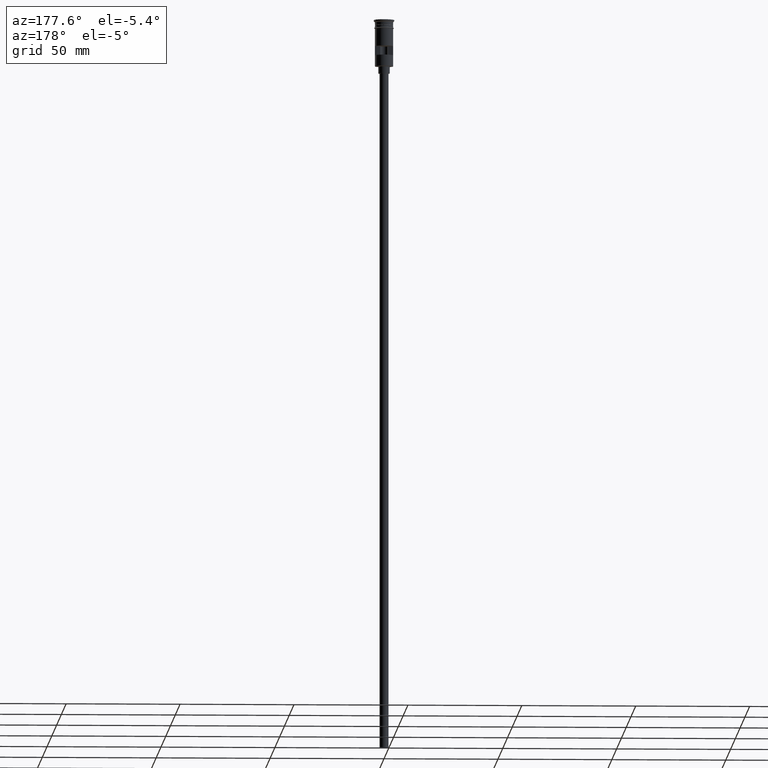
[diagram: clean part render]
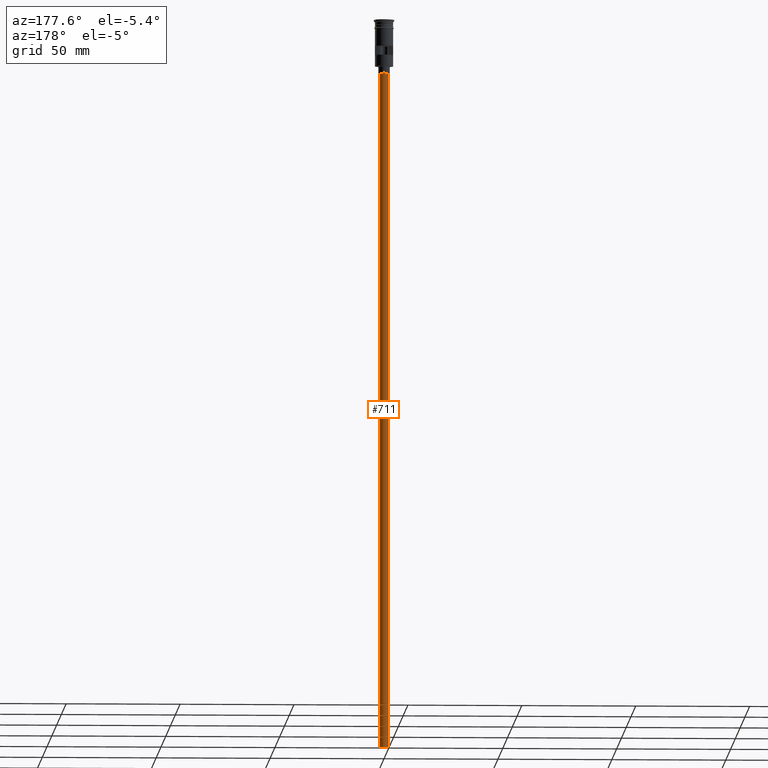
[diagram: same view with one face highlighted and labeled with its STEP entity id]
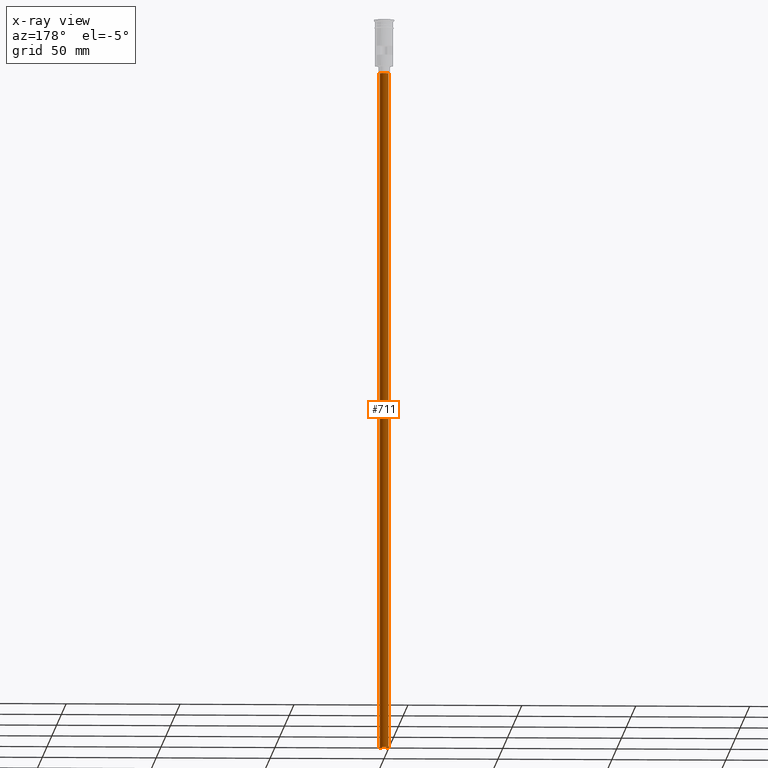
[diagram: x-ray of the same camera — body ghosted, the highlighted face saturated]
A machine part, auxiliary view. The second image highlights one B-rep face of the part: STEP entity #711.
The next image is the same camera in x-ray: the body ghosted, the highlighted face saturated — about 0% of this face is hidden behind the body in this view.
In plain terms, the highlighted cylindrical surface (edge-blend (fillet) strip) has radius 2 mm, axis along (-0, -0, 1).
Its self-contained STEP definition (entity closure, byte-faithful):
#54 = DIRECTION ( 'NONE',  ( 0.000000000000000000, 0.000000000000000000, -1.000000000000000000 ) ) ;
#70 = FACE_OUTER_BOUND ( 'NONE', #1153, .T. ) ;
#85 = AXIS2_PLACEMENT_3D ( 'NONE', #1045, #676, #194 ) ;
#167 = CARTESIAN_POINT ( 'NONE',  ( 0.000000000000000000, 0.000000000000000000, -320.5000000000000000 ) ) ;
#186 = DIRECTION ( 'NONE',  ( -1.000000000000000000, 0.000000000000000000, 0.000000000000000000 ) ) ;
#188 = VECTOR ( 'NONE', #538, 1000.000000000000000 ) ;
#191 = EDGE_CURVE ( 'NONE', #1218, #833, #1209, .T. ) ;
#194 = DIRECTION ( 'NONE',  ( -1.000000000000000000, 0.000000000000000000, 0.000000000000000000 ) ) ;
#295 = EDGE_CURVE ( 'NONE', #663, #1218, #1021, .T. ) ;
#300 = DIRECTION ( 'NONE',  ( -0.000000000000000000, -0.000000000000000000, 1.000000000000000000 ) ) ;
#304 = EDGE_CURVE ( 'NONE', #474, #833, #1428, .T. ) ;
#441 = ORIENTED_EDGE ( 'NONE', *, *, #191, .F. ) ;
#442 = DIRECTION ( 'NONE',  ( 1.000000000000000000, 0.000000000000000000, 0.000000000000000000 ) ) ;
#474 = VERTEX_POINT ( 'NONE', #731 ) ;
#520 = EDGE_CURVE ( 'NONE', #663, #474, #1366, .T. ) ;
#538 = DIRECTION ( 'NONE',  ( -0.000000000000000000, -0.000000000000000000, 1.000000000000000000 ) ) ;
#663 = VERTEX_POINT ( 'NONE', #1290 ) ;
#676 = DIRECTION ( 'NONE',  ( 0.000000000000000000, 0.000000000000000000, -1.000000000000000000 ) ) ;
#711 = ADVANCED_FACE ( 'NONE', ( #70 ), #1418, .T. ) ;
#731 = CARTESIAN_POINT ( 'NONE',  ( -2.000000000000000000, 2.449293598294706414E-16, -23.49999999999999645 ) ) ;
#734 = CARTESIAN_POINT ( 'NONE',  ( 2.000000000000000000, 0.000000000000000000, -320.5000000000000000 ) ) ;
#746 = ORIENTED_EDGE ( 'NONE', *, *, #295, .F. ) ;
#833 = VERTEX_POINT ( 'NONE', #863 ) ;
#838 = DIRECTION ( 'NONE',  ( -0.000000000000000000, -0.000000000000000000, 1.000000000000000000 ) ) ;
#863 = CARTESIAN_POINT ( 'NONE',  ( 2.000000000000000000, 0.000000000000000000, -23.49999999999999645 ) ) ;
#867 = VECTOR ( 'NONE', #838, 1000.000000000000000 ) ;
#890 = CARTESIAN_POINT ( 'NONE',  ( -2.000000000000000000, 2.449293598294706414E-16, -320.5000000000000000 ) ) ;
#996 = AXIS2_PLACEMENT_3D ( 'NONE', #1300, #54, #186 ) ;
#1017 = ORIENTED_EDGE ( 'NONE', *, *, #520, .T. ) ;
#1021 = CIRCLE ( 'NONE', #85, 2.000000000000000000 ) ;
#1045 = CARTESIAN_POINT ( 'NONE',  ( 0.000000000000000000, 0.000000000000000000, -320.5000000000000000 ) ) ;
#1153 = EDGE_LOOP ( 'NONE', ( #746, #1017, #1516, #441 ) ) ;
#1209 = LINE ( 'NONE', #734, #867 ) ;
#1218 = VERTEX_POINT ( 'NONE', #1350 ) ;
#1290 = CARTESIAN_POINT ( 'NONE',  ( -2.000000000000000000, 2.449293598294706414E-16, -320.5000000000000000 ) ) ;
#1300 = CARTESIAN_POINT ( 'NONE',  ( 0.000000000000000000, 0.000000000000000000, -23.49999999999999645 ) ) ;
#1350 = CARTESIAN_POINT ( 'NONE',  ( 2.000000000000000000, 0.000000000000000000, -320.5000000000000000 ) ) ;
#1356 = AXIS2_PLACEMENT_3D ( 'NONE', #167, #300, #442 ) ;
#1366 = LINE ( 'NONE', #890, #188 ) ;
#1418 = CYLINDRICAL_SURFACE ( 'NONE', #1356, 2.000000000000000000 ) ;
#1428 = CIRCLE ( 'NONE', #996, 2.000000000000000000 ) ;
#1516 = ORIENTED_EDGE ( 'NONE', *, *, #304, .T. ) ;